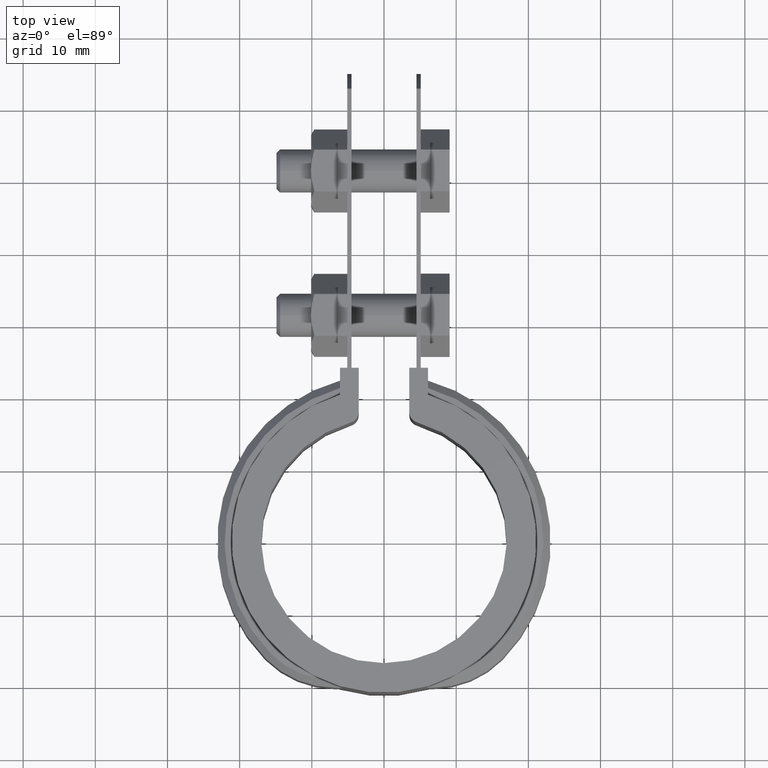
[diagram: clean part render]
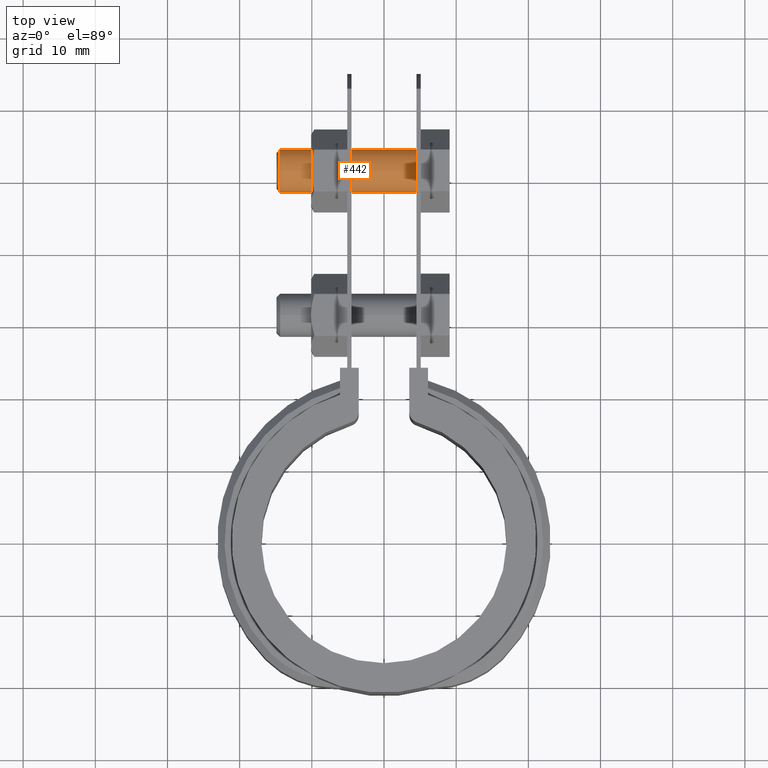
[diagram: same view with one face highlighted and labeled with its STEP entity id]
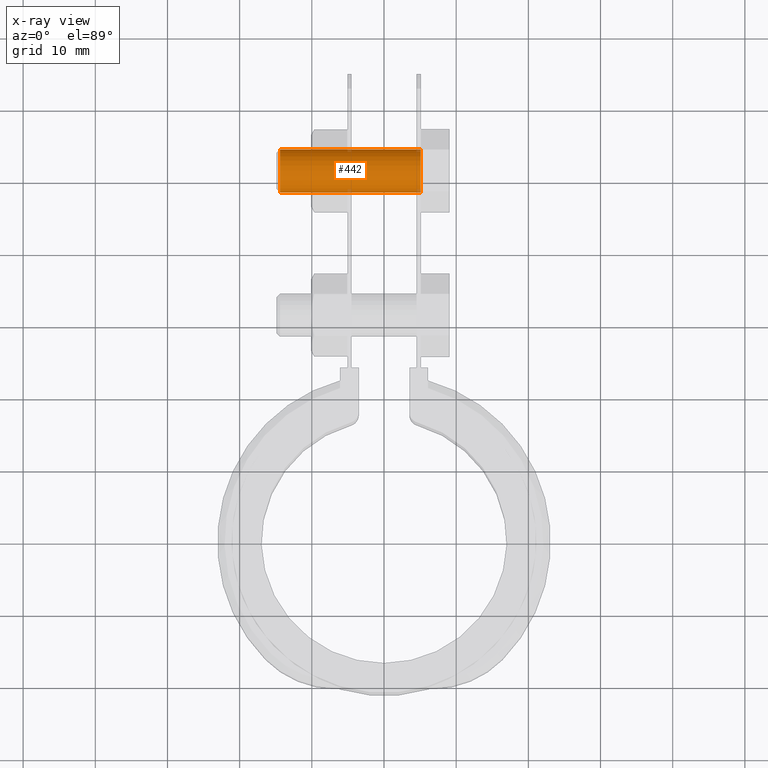
[diagram: x-ray of the same camera — body ghosted, the highlighted face saturated]
A machine part, top view. The second image highlights one B-rep face of the part: STEP entity #442.
The next image is the same camera in x-ray: the body ghosted, the highlighted face saturated — about 1% of this face is hidden behind the body in this view.
In plain terms, the highlighted cylindrical surface (bore or boss wall) has radius 3 mm, axis along (1, 0, 0).
Its self-contained STEP definition (entity closure, byte-faithful):
#442 = ADVANCED_FACE( '', ( #777, #778 ), #779, .T. );
#777 = FACE_OUTER_BOUND( '', #1575, .T. );
#778 = FACE_OUTER_BOUND( '', #1576, .T. );
#779 = CYLINDRICAL_SURFACE( '', #1577, 3.00000000000000 );
#1575 = EDGE_LOOP( '', ( #3504 ) );
#1576 = EDGE_LOOP( '', ( #3505 ) );
#1577 = AXIS2_PLACEMENT_3D( '', #3506, #3507, #3508 );
#3504 = ORIENTED_EDGE( '', *, *, #4348, .T. );
#3505 = ORIENTED_EDGE( '', *, *, #4342, .F. );
#3506 = CARTESIAN_POINT( '', ( 13.5487843911358, 51.4443584449262, -12.5000000000000 ) );
#3507 = DIRECTION( '', ( 1.00000000000000, 0.000000000000000, 0.000000000000000 ) );
#3508 = DIRECTION( '', ( 0.000000000000000, 0.000000000000000, 1.00000000000000 ) );
#4342 = EDGE_CURVE( '', #5094, #5094, #5095, .F. );
#4348 = EDGE_CURVE( '', #5104, #5104, #5105, .T. );
#5094 = VERTEX_POINT( '', #7620 );
#5095 = CIRCLE( '', #7621, 3.00000000000000 );
#5104 = VERTEX_POINT( '', #7635 );
#5105 = CIRCLE( '', #7636, 3.00000000000000 );
#7620 = CARTESIAN_POINT( '', ( 5.09999999999999, 51.4443584449262, -9.49999999999998 ) );
#7621 = AXIS2_PLACEMENT_3D( '', #8484, #8485, #8486 );
#7635 = CARTESIAN_POINT( '', ( -14.4000000000000, 51.4443584449262, -15.5000000000000 ) );
#7636 = AXIS2_PLACEMENT_3D( '', #8492, #8493, #8494 );
#8484 = CARTESIAN_POINT( '', ( 5.09999999999999, 51.4443584449262, -12.5000000000000 ) );
#8485 = DIRECTION( '', ( -1.00000000000000, 0.000000000000000, 0.000000000000000 ) );
#8486 = DIRECTION( '', ( 0.000000000000000, 0.000000000000000, 1.00000000000000 ) );
#8492 = CARTESIAN_POINT( '', ( -14.4000000000000, 51.4443584449262, -12.5000000000000 ) );
#8493 = DIRECTION( '', ( 1.00000000000000, 0.000000000000000, 0.000000000000000 ) );
#8494 = DIRECTION( '', ( 0.000000000000000, 0.000000000000000, -1.00000000000000 ) );